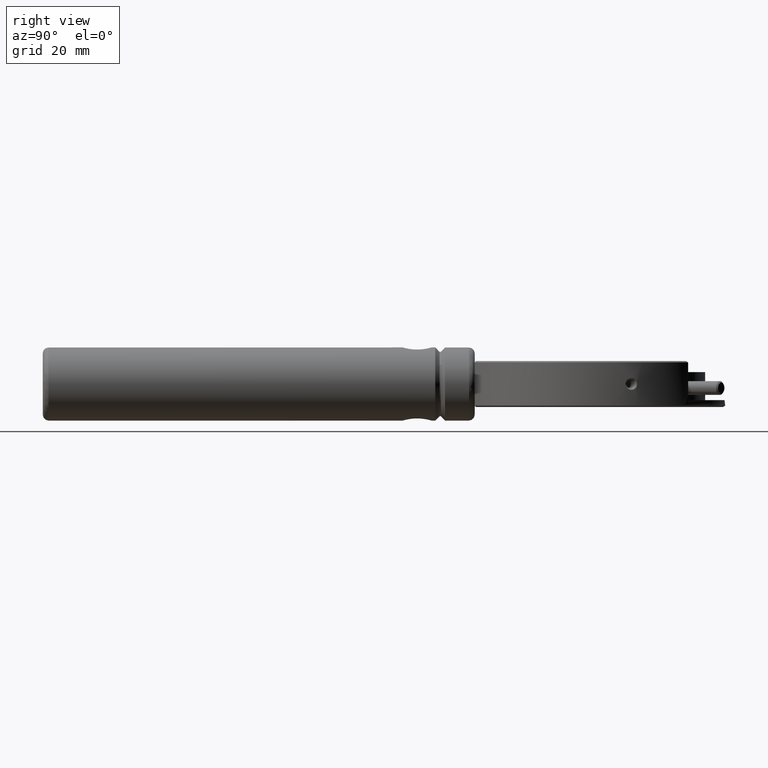
[diagram: clean part render]
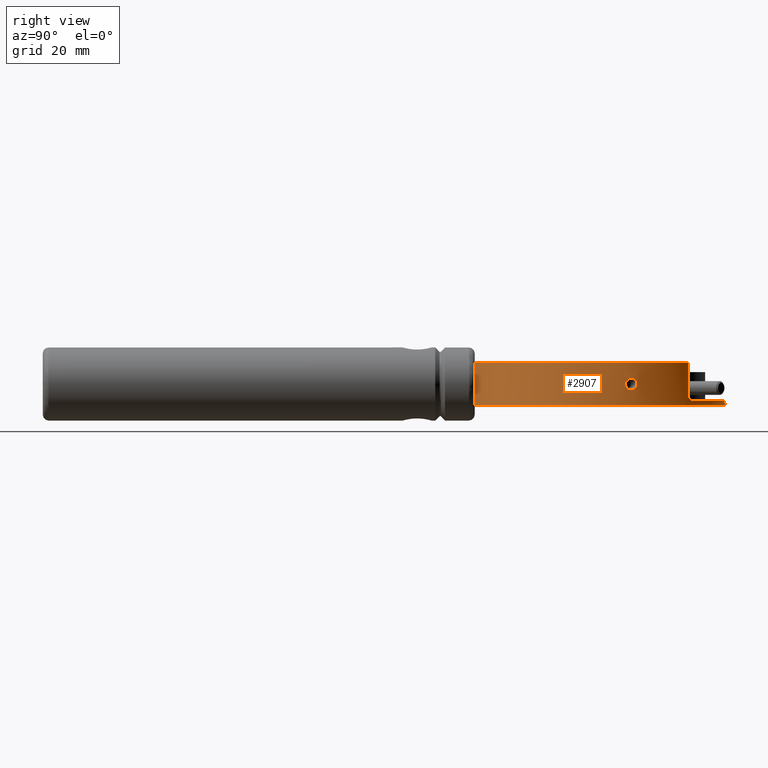
[diagram: same view with one face highlighted and labeled with its STEP entity id]
A machine part, right view. The second image highlights one B-rep face of the part: STEP entity #2907.
In plain terms, the highlighted cylindrical surface (partial cylindrical patch) has radius 22 mm, axis along (0, 0, -1).
Its self-contained STEP definition (entity closure, byte-faithful):
#66 = CARTESIAN_POINT ( 'NONE',  ( 21.53208362161735323, 63.68313322069391091, 0.001097639841570599963 ) ) ;
#89 = EDGE_CURVE ( 'NONE', #1122, #3381, #2987, .T. ) ;
#98 = VERTEX_POINT ( 'NONE', #2210 ) ;
#133 = ORIENTED_EDGE ( 'NONE', *, *, #1977, .T. ) ;
#149 = CARTESIAN_POINT ( 'NONE',  ( 0.03631047345558845174, 59.00000000000000000, -2.799999999999999822 ) ) ;
#177 = CARTESIAN_POINT ( 'NONE',  ( 15.38696860634536101, 74.75950770346759100, -2.649698501230703496 ) ) ;
#180 = CARTESIAN_POINT ( 'NONE',  ( 21.11330063099282484, 65.30634277646340990, 0.8248165072352757754 ) ) ;
#192 = CARTESIAN_POINT ( 'NONE',  ( -20.98404341717015598, 65.49262648632208084, -0.6332521793349706885 ) ) ;
#237 = AXIS2_PLACEMENT_3D ( 'NONE', #1667, #3319, #2476 ) ;
#287 = EDGE_CURVE ( 'NONE', #1444, #1122, #2777, .T. ) ;
#321 = FACE_OUTER_BOUND ( 'NONE', #660, .T. ) ;
#392 = CARTESIAN_POINT ( 'NONE',  ( 21.41614611120218470, 64.18829367799020247, -0.8997166657922373023 ) ) ;
#398 = AXIS2_PLACEMENT_3D ( 'NONE', #685, #1770, #634 ) ;
#401 = VERTEX_POINT ( 'NONE', #968 ) ;
#409 = CARTESIAN_POINT ( 'NONE',  ( 21.00207527948931130, 65.66629416181642398, 0.2699493276304068545 ) ) ;
#421 = CARTESIAN_POINT ( 'NONE',  ( -21.24913446949009810, 64.56309772506304512, 1.028531363236360407 ) ) ;
#426 = VECTOR ( 'NONE', #1808, 1000.000000000000000 ) ;
#445 = CARTESIAN_POINT ( 'NONE',  ( 15.19623645422268332, 74.94317688852787285, -2.780531724459221810 ) ) ;
#446 = CARTESIAN_POINT ( 'NONE',  ( -15.26527587454338786, 74.80761146814876383, -2.718548397324438426 ) ) ;
#457 = CARTESIAN_POINT ( 'NONE',  ( -21.43073924621956650, 63.81337348913274354, -0.5215660498768490694 ) ) ;
#465 = CARTESIAN_POINT ( 'NONE',  ( 21.32176093770550906, 64.56307684895982391, -1.028529513432880016 ) ) ;
#472 = CARTESIAN_POINT ( 'NONE',  ( -20.92114175718690916, 65.69217423565309844, 0.001097639841569707881 ) ) ;
#478 = CARTESIAN_POINT ( 'NONE',  ( -15.52003871264849977, 74.55634918610400064, -2.050000000000000266 ) ) ;
#488 = CARTESIAN_POINT ( 'NONE',  ( -21.04070748740484476, 65.30623414207150290, 0.8246341956433096421 ) ) ;
#493 = CARTESIAN_POINT ( 'NONE',  ( 4.700000000000000178, 37.50000000000000000, 4.000000000000000000 ) ) ;
#510 = CARTESIAN_POINT ( 'NONE',  ( -15.41341465493461627, 74.66240003098162958, -2.511006764129485980 ) ) ;
#538 = CARTESIAN_POINT ( 'NONE',  ( 15.59265965955970046, 74.55634918610400064, 3.750000000000000000 ) ) ;
#540 = VERTEX_POINT ( 'NONE', #949 ) ;
#543 = EDGE_CURVE ( 'NONE', #98, #1444, #1561, .T. ) ;
#559 = VERTEX_POINT ( 'NONE', #2795 ) ;
#577 = ORIENTED_EDGE ( 'NONE', *, *, #2229, .T. ) ;
#584 = DIRECTION ( 'NONE',  ( -1.000000000000000000, 0.000000000000000000, 0.000000000000000000 ) ) ;
#609 = CARTESIAN_POINT ( 'NONE',  ( 0.03631047345558845174, 59.00000000000000000, 3.750000000000000000 ) ) ;
#633 = CARTESIAN_POINT ( 'NONE',  ( 15.59265965955969691, 74.55634918610400064, -2.248104347336847830 ) ) ;
#634 = DIRECTION ( 'NONE',  ( -1.000000000000000000, 0.000000000000000000, 0.000000000000000000 ) ) ;
#644 = EDGE_LOOP ( 'NONE', ( #2788 ) ) ;
#650 = CARTESIAN_POINT ( 'NONE',  ( -15.52003871264849977, 74.55634918610400064, -2.050000000000000266 ) ) ;
#660 = EDGE_LOOP ( 'NONE', ( #3107, #2697, #2293, #133, #3311, #3344, #1948, #1592, #1107, #3055 ) ) ;
#667 = EDGE_CURVE ( 'NONE', #3381, #1464, #1028, .T. ) ;
#668 = CARTESIAN_POINT ( 'NONE',  ( -4.627379053088799488, 37.50000000000000000, 3.750000000000000000 ) ) ;
#685 = CARTESIAN_POINT ( 'NONE',  ( 0.03631047345558845174, 59.00000000000000000, 4.000000000000000000 ) ) ;
#698 = CARTESIAN_POINT ( 'NONE',  ( -21.43093427780146243, 63.81250190061417271, 0.5200985469432252151 ) ) ;
#705 = CARTESIAN_POINT ( 'NONE',  ( 21.48629095761277341, 63.88954112431193266, 0.6357128817186686875 ) ) ;
#716 = CARTESIAN_POINT ( 'NONE',  ( -21.28291614616426486, 64.43197341020079705, 1.002125885649724157 ) ) ;
#726 = CARTESIAN_POINT ( 'NONE',  ( 21.21540417522789923, 64.95496226864123912, -1.002117251799017561 ) ) ;
#736 = CARTESIAN_POINT ( 'NONE',  ( -21.45949493661657925, 63.68298513720604603, 0.1355338402236622997 ) ) ;
#758 = CARTESIAN_POINT ( 'NONE',  ( -14.98066628139066125, 75.07763692662598487, -2.799999999999999822 ) ) ;
#865 = CARTESIAN_POINT ( 'NONE',  ( 15.59265965955970046, 74.55634918610400064, 4.000000000000000000 ) ) ;
#894 = EDGE_CURVE ( 'NONE', #401, #2008, #1669, .T. ) ;
#945 = CARTESIAN_POINT ( 'NONE',  ( -20.96111400423154691, 65.56589190561903990, -0.5200521107425829515 ) ) ;
#949 = CARTESIAN_POINT ( 'NONE',  ( -14.98066628139066125, 75.07763692662598487, -2.799999999999999822 ) ) ;
#952 = CARTESIAN_POINT ( 'NONE',  ( 21.00225281542454070, 65.66573699797133656, -0.2719837683469151779 ) ) ;
#962 = CARTESIAN_POINT ( 'NONE',  ( -21.17926418955194734, 64.82388310632408945, 1.028670580663131995 ) ) ;
#968 = CARTESIAN_POINT ( 'NONE',  ( -4.627379053088809258, 37.50000000000000000, -3.750000000000000000 ) ) ;
#1011 = CARTESIAN_POINT ( 'NONE',  ( 21.53211499987143540, 63.68298919322347729, -0.1355894451334410111 ) ) ;
#1028 = LINE ( 'NONE', #493, #426 ) ;
#1107 = ORIENTED_EDGE ( 'NONE', *, *, #89, .T. ) ;
#1122 = VERTEX_POINT ( 'NONE', #538 ) ;
#1154 = DIRECTION ( 'NONE',  ( 0.000000000000000000, 0.000000000000000000, -1.000000000000000000 ) ) ;
#1199 = CARTESIAN_POINT ( 'NONE',  ( 21.53208362161735323, 63.68313322069389670, 0.001097639841570507372 ) ) ;
#1209 = CARTESIAN_POINT ( 'NONE',  ( -21.17896878405983330, 64.82495935772126927, -1.028529513432730136 ) ) ;
#1210 = VECTOR ( 'NONE', #1881, 1000.000000000000000 ) ;
#1222 = DIRECTION ( 'NONE',  ( 0.000000000000000000, 0.000000000000000000, -1.000000000000000000 ) ) ;
#1250 = B_SPLINE_CURVE_WITH_KNOTS ( 'NONE', 3,
 ( #478, #2938, #2869, #3449, #510, #446, #1527, #758 ),
 .UNSPECIFIED., .F., .F.,
 ( 4, 2, 2, 4 ),
 ( 0.000000000000000000, 0.0002929392057928842884, 0.0005858784115857685769, 0.001171756823171539756 ),
 .UNSPECIFIED. ) ;
#1252 = CARTESIAN_POINT ( 'NONE',  ( 15.53521667580647758, 74.61419415803347022, -2.442304697534432023 ) ) ;
#1273 = CARTESIAN_POINT ( 'NONE',  ( 21.53208362161735323, 63.68313322069389670, 0.001097639841570507372 ) ) ;
#1285 = CARTESIAN_POINT ( 'NONE',  ( -20.96138610448165096, 65.56502298858504219, 0.5215677551542097223 ) ) ;
#1362 = EDGE_CURVE ( 'NONE', #2008, #559, #1429, .T. ) ;
#1418 = LINE ( 'NONE', #1651, #1873 ) ;
#1429 = CIRCLE ( 'NONE', #3420, 22.00000000000000000 ) ;
#1441 = DIRECTION ( 'NONE',  ( -1.000000000000000000, 0.000000000000000000, 0.000000000000000000 ) ) ;
#1444 = VERTEX_POINT ( 'NONE', #1705 ) ;
#1463 = AXIS2_PLACEMENT_3D ( 'NONE', #3015, #2129, #584 ) ;
#1464 = VERTEX_POINT ( 'NONE', #2803 ) ;
#1489 = CARTESIAN_POINT ( 'NONE',  ( 21.14594816733740856, 65.19668905310568618, 0.8997258888142585231 ) ) ;
#1499 = CARTESIAN_POINT ( 'NONE',  ( -21.28280383573066814, 64.43239824766583013, -1.002117251799304443 ) ) ;
#1508 = CARTESIAN_POINT ( 'NONE',  ( 21.52621972764323033, 63.71026418224594323, 0.2719547458720846245 ) ) ;
#1527 = CARTESIAN_POINT ( 'NONE',  ( -15.12544113903116205, 74.94241303260500331, -2.800000000000002043 ) ) ;
#1529 = CARTESIAN_POINT ( 'NONE',  ( 21.32147864066792664, 64.56415661275505613, 1.028670580662923051 ) ) ;
#1539 = CARTESIAN_POINT ( 'NONE',  ( -21.37003892031608743, 64.07715277076948723, -0.8246344097503028880 ) ) ;
#1555 = CARTESIAN_POINT ( 'NONE',  ( -21.14278004317429804, 64.95497349229522399, 1.002122461060440894 ) ) ;
#1561 = B_SPLINE_CURVE_WITH_KNOTS ( 'NONE', 3,
 ( #2032, #2868, #445, #2598, #177, #1252, #633, #1715 ),
 .UNSPECIFIED., .F., .F.,
 ( 4, 2, 2, 4 ),
 ( 0.000000000000000000, 0.0002929396253339820060, 0.0005858792506679640121, 0.001171758501335930626 ),
 .UNSPECIFIED. ) ;
#1569 = CARTESIAN_POINT ( 'NONE',  ( -21.45943039882108394, 63.68328136832663944, -0.1377867972825795873 ) ) ;
#1592 = ORIENTED_EDGE ( 'NONE', *, *, #287, .T. ) ;
#1651 = CARTESIAN_POINT ( 'NONE',  ( -15.52003871264849977, 74.55634918610400064, 4.000000000000000000 ) ) ;
#1667 = CARTESIAN_POINT ( 'NONE',  ( 0.03631047345558845174, 59.00000000000000000, -3.750000000000000000 ) ) ;
#1669 = LINE ( 'NONE', #3228, #1210 ) ;
#1705 = CARTESIAN_POINT ( 'NONE',  ( 15.59265965955970046, 74.55634918610400064, -2.050000000000000266 ) ) ;
#1715 = CARTESIAN_POINT ( 'NONE',  ( 15.59265965955970046, 74.55634918610400064, -2.050000000000000266 ) ) ;
#1734 = CARTESIAN_POINT ( 'NONE',  ( 21.14645762680711627, 65.19493929052066505, -0.9006546157814114828 ) ) ;
#1770 = DIRECTION ( 'NONE',  ( 0.000000000000000000, 0.000000000000000000, -1.000000000000000000 ) ) ;
#1783 = CARTESIAN_POINT ( 'NONE',  ( -20.92118659655699986, 65.69203381507766437, 0.1377847248166785554 ) ) ;
#1801 = CARTESIAN_POINT ( 'NONE',  ( -21.34351656068484004, 64.18832870759695197, 0.8997258888134824772 ) ) ;
#1808 = DIRECTION ( 'NONE',  ( 0.000000000000000000, 0.000000000000000000, -1.000000000000000000 ) ) ;
#1810 = CARTESIAN_POINT ( 'NONE',  ( 21.25188547074383294, 64.82388212688995566, -1.028672418790715470 ) ) ;
#1820 = CARTESIAN_POINT ( 'NONE',  ( -21.07331715656382443, 65.19672369143992796, -0.8997166657920310229 ) ) ;
#1873 = VECTOR ( 'NONE', #2726, 1000.000000000000000 ) ;
#1881 = DIRECTION ( 'NONE',  ( -0.000000000000000000, -0.000000000000000000, 1.000000000000000000 ) ) ;
#1948 = ORIENTED_EDGE ( 'NONE', *, *, #543, .T. ) ;
#1960 = EDGE_CURVE ( 'NONE', #401, #1464, #2493, .T. ) ;
#1977 = EDGE_CURVE ( 'NONE', #559, #2974, #1418, .T. ) ;
#2001 = CARTESIAN_POINT ( 'NONE',  ( 21.35553744595372194, 64.43197243008839337, -1.002119636206147302 ) ) ;
#2008 = VERTEX_POINT ( 'NONE', #668 ) ;
#2028 = CARTESIAN_POINT ( 'NONE',  ( -21.45359670795488327, 63.71027359579604621, -0.2719837683483491975 ) ) ;
#2032 = CARTESIAN_POINT ( 'NONE',  ( 15.05328722830184951, 75.07763692662598487, -2.799999999999999822 ) ) ;
#2040 = CIRCLE ( 'NONE', #3006, 22.00000000000000000 ) ;
#2067 = CARTESIAN_POINT ( 'NONE',  ( -20.92945158380230453, 65.66630276621862095, -0.2699282631203264726 ) ) ;
#2076 = CARTESIAN_POINT ( 'NONE',  ( 21.03400761956405063, 65.56502114034668693, -0.5215660498755571028 ) ) ;
#2088 = VECTOR ( 'NONE', #2528, 1000.000000000000000 ) ;
#2095 = CARTESIAN_POINT ( 'NONE',  ( 21.50355943798735936, 63.81248305007493116, -0.5200521107426738787 ) ) ;
#2129 = DIRECTION ( 'NONE',  ( 0.000000000000000000, 0.000000000000000000, -1.000000000000000000 ) ) ;
#2168 = EDGE_CURVE ( 'NONE', #3314, #3314, #3468, .T. ) ;
#2199 = VERTEX_POINT ( 'NONE', #2731 ) ;
#2210 = CARTESIAN_POINT ( 'NONE',  ( 15.05328722830184951, 75.07763692662598487, -2.799999999999999822 ) ) ;
#2211 = FACE_BOUND ( 'NONE', #3026, .T. ) ;
#2229 = EDGE_CURVE ( 'NONE', #2199, #2199, #2475, .T. ) ;
#2265 = CARTESIAN_POINT ( 'NONE',  ( 21.53205224336326751, 63.68327724816431612, 0.1377847248165820215 ) ) ;
#2293 = ORIENTED_EDGE ( 'NONE', *, *, #1362, .T. ) ;
#2294 = CARTESIAN_POINT ( 'NONE',  ( -21.14266788881822734, 64.95538736913646005, -1.002119636205934583 ) ) ;
#2336 = CARTESIAN_POINT ( 'NONE',  ( 21.05667644480995193, 65.49258713807526533, 0.6333001689542672175 ) ) ;
#2356 = CARTESIAN_POINT ( 'NONE',  ( 21.48678418243758514, 63.88739747087425513, -0.6332521793351379991 ) ) ;
#2365 = CARTESIAN_POINT ( 'NONE',  ( -20.92109691781681491, 65.69231465622851829, -0.1355894451335393769 ) ) ;
#2474 = FACE_BOUND ( 'NONE', #644, .T. ) ;
#2475 = B_SPLINE_CURVE_WITH_KNOTS ( 'NONE', 3,
 ( #3148, #1783, #2592, #1285, #2915, #488, #2574, #1555, #962, #421, #716, #1801, #2899, #3186, #698, #2882, #736, #1569, #2028, #457, #2645, #1539, #2611, #1499, #3401, #1209, #2294, #1820, #3382, #192, #945, #2067, #2365, #472 ),
 .UNSPECIFIED., .T., .F.,
 ( 4, 2, 2, 2, 2, 2, 2, 2, 2, 2, 2, 2, 2, 2, 2, 2, 4 ),
 ( 0.000000000000000000, 0.0004042468403098548805, 0.0008084936806197099779, 0.001212740520929565021, 0.001616987361239420390, 0.002021234201549275324, 0.002425481041859130042, 0.002829727882168984760, 0.003233974722478839912, 0.003638221562788695063, 0.004042468403098549781, 0.004446715243408404933, 0.004850962083718259217, 0.005255208924028114369, 0.005659455764337969520, 0.006063702604647823804, 0.006467949444957679823 ),
 .UNSPECIFIED. ) ;
#2476 = DIRECTION ( 'NONE',  ( 1.000000000000000000, 0.000000000000000000, 3.942553354492743284E-17 ) ) ;
#2493 = CIRCLE ( 'NONE', #237, 22.00000000000000000 ) ;
#2528 = DIRECTION ( 'NONE',  ( -0.000000000000000000, -0.000000000000000000, 1.000000000000000000 ) ) ;
#2565 = CARTESIAN_POINT ( 'NONE',  ( 20.99380882617795763, 65.69202979809709575, -0.1377867972808109465 ) ) ;
#2574 = CARTESIAN_POINT ( 'NONE',  ( -21.07383617311733914, 65.19494091704892469, 0.9006443460328842354 ) ) ;
#2592 = CARTESIAN_POINT ( 'NONE',  ( -20.92962895681609226, 65.66574618673313068, 0.2719547458725042888 ) ) ;
#2598 = CARTESIAN_POINT ( 'NONE',  ( 15.32732459662128832, 74.81749449585404932, -2.705347634042025273 ) ) ;
#2600 = CARTESIAN_POINT ( 'NONE',  ( 21.25159538743347554, 64.82493851783149807, 1.028531363236632190 ) ) ;
#2611 = CARTESIAN_POINT ( 'NONE',  ( -21.34308288423470046, 64.19009877618350401, -0.9006546157818027254 ) ) ;
#2642 = EDGE_CURVE ( 'NONE', #540, #98, #2040, .T. ) ;
#2645 = CARTESIAN_POINT ( 'NONE',  ( -21.41366809571432128, 63.88954946882765995, -0.6357238815016913458 ) ) ;
#2697 = ORIENTED_EDGE ( 'NONE', *, *, #894, .T. ) ;
#2726 = DIRECTION ( 'NONE',  ( 0.000000000000000000, 0.000000000000000000, -1.000000000000000000 ) ) ;
#2731 = CARTESIAN_POINT ( 'NONE',  ( -20.92114175718690205, 65.69217423565309844, 0.001097639841569734119 ) ) ;
#2777 = LINE ( 'NONE', #865, #2088 ) ;
#2788 = ORIENTED_EDGE ( 'NONE', *, *, #2168, .T. ) ;
#2795 = CARTESIAN_POINT ( 'NONE',  ( -15.52003871264849977, 74.55634918610400064, 3.750000000000000000 ) ) ;
#2803 = CARTESIAN_POINT ( 'NONE',  ( 4.700000000000000178, 37.50000000000000000, -3.750000000000000000 ) ) ;
#2815 = CARTESIAN_POINT ( 'NONE',  ( 21.35542763605499061, 64.43238693512343218, 1.002122461060043435 ) ) ;
#2832 = CARTESIAN_POINT ( 'NONE',  ( 21.41570420552724840, 64.19009711417770347, 0.9006443460325945782 ) ) ;
#2868 = CARTESIAN_POINT ( 'NONE',  ( 15.12567432486629926, 75.01002528995202567, -2.799999999999997602 ) ) ;
#2869 = CARTESIAN_POINT ( 'NONE',  ( -15.50627416747644638, 74.57014699313749873, -2.246246583853880985 ) ) ;
#2871 = CARTESIAN_POINT ( 'NONE',  ( 21.44266053461746679, 64.07715001118299369, 0.8246341956427905018 ) ) ;
#2882 = CARTESIAN_POINT ( 'NONE',  ( -21.45372153924755665, 63.70970230978377202, 0.2699493276284306575 ) ) ;
#2892 = CARTESIAN_POINT ( 'NONE',  ( 21.05731155940210542, 65.49051523152027698, -0.6357238815005330501 ) ) ;
#2899 = CARTESIAN_POINT ( 'NONE',  ( -21.37006982651823606, 64.07704202937749471, 0.8248165072341476778 ) ) ;
#2907 = ADVANCED_FACE ( 'NONE', ( #321, #2474, #2211 ), #3302, .T. ) ;
#2915 = CARTESIAN_POINT ( 'NONE',  ( -20.98468809866104223, 65.49052341557542434, 0.6357128817190612624 ) ) ;
#2938 = CARTESIAN_POINT ( 'NONE',  ( -15.52003871264849799, 74.55634918610402906, -2.149052275232229636 ) ) ;
#2974 = VERTEX_POINT ( 'NONE', #650 ) ;
#2987 = CIRCLE ( 'NONE', #1463, 22.00000000000000000 ) ;
#3006 = AXIS2_PLACEMENT_3D ( 'NONE', #149, #1222, #3396 ) ;
#3015 = CARTESIAN_POINT ( 'NONE',  ( 0.03631047345558845174, 59.00000000000000000, 3.750000000000000000 ) ) ;
#3026 = EDGE_LOOP ( 'NONE', ( #577 ) ) ;
#3055 = ORIENTED_EDGE ( 'NONE', *, *, #667, .T. ) ;
#3107 = ORIENTED_EDGE ( 'NONE', *, *, #1960, .F. ) ;
#3137 = CARTESIAN_POINT ( 'NONE',  ( 21.50336062519945912, 63.81337160442463130, 0.5215677551540004453 ) ) ;
#3148 = CARTESIAN_POINT ( 'NONE',  ( -20.92114175718690916, 65.69217423565309844, 0.001097639841569707881 ) ) ;
#3160 = CARTESIAN_POINT ( 'NONE',  ( 21.11332923613192847, 65.30623141850594493, -0.8246344097496920433 ) ) ;
#3178 = CARTESIAN_POINT ( 'NONE',  ( 21.52634440785013936, 63.70969348376516450, -0.2699282631204794614 ) ) ;
#3186 = CARTESIAN_POINT ( 'NONE',  ( -21.41415402362115827, 63.88743758781861715, 0.6333001689525590283 ) ) ;
#3228 = CARTESIAN_POINT ( 'NONE',  ( -4.627379053088799488, 37.50000000000000000, 4.000000000000000000 ) ) ;
#3302 = CYLINDRICAL_SURFACE ( 'NONE', #398, 22.00000000000000000 ) ;
#3311 = ORIENTED_EDGE ( 'NONE', *, *, #3366, .T. ) ;
#3314 = VERTEX_POINT ( 'NONE', #66 ) ;
#3319 = DIRECTION ( 'NONE',  ( -0.000000000000000000, -0.000000000000000000, -1.000000000000000000 ) ) ;
#3344 = ORIENTED_EDGE ( 'NONE', *, *, #2642, .T. ) ;
#3354 = CARTESIAN_POINT ( 'NONE',  ( 21.21528902018459561, 64.95538634389315291, 1.002125885650178239 ) ) ;
#3366 = EDGE_CURVE ( 'NONE', #2974, #540, #1250, .T. ) ;
#3381 = VERTEX_POINT ( 'NONE', #3428 ) ;
#3382 = CARTESIAN_POINT ( 'NONE',  ( -21.04067697162900075, 65.30635208482550524, -0.8248144829861038252 ) ) ;
#3391 = CARTESIAN_POINT ( 'NONE',  ( 21.03374072760989222, 65.56587347393443110, 0.5200985469450615239 ) ) ;
#3396 = DIRECTION ( 'NONE',  ( -1.000000000000000000, 0.000000000000000000, 0.000000000000000000 ) ) ;
#3401 = CARTESIAN_POINT ( 'NONE',  ( -21.24885749353476427, 64.56415762811208481, -1.028672418790854248 ) ) ;
#3420 = AXIS2_PLACEMENT_3D ( 'NONE', #609, #1154, #1441 ) ;
#3428 = CARTESIAN_POINT ( 'NONE',  ( 4.700000000000000178, 37.50000000000000000, 3.750000000000000000 ) ) ;
#3430 = CARTESIAN_POINT ( 'NONE',  ( 20.99371660198806566, 65.69231861067072487, 0.1355338402255887031 ) ) ;
#3449 = CARTESIAN_POINT ( 'NONE',  ( -15.45294402024753566, 74.62320101444458942, -2.427834856211736003 ) ) ;
#3451 = CARTESIAN_POINT ( 'NONE',  ( 21.44269307855717699, 64.07703261187481303, -0.8248144829863032212 ) ) ;
#3468 = B_SPLINE_CURVE_WITH_KNOTS ( 'NONE', 3,
 ( #1199, #2265, #1508, #3137, #705, #2871, #2832, #2815, #1529, #2600, #3354, #1489, #180, #2336, #3391, #409, #3430, #2565, #952, #2076, #2892, #3160, #1734, #726, #1810, #465, #2001, #392, #3451, #2356, #2095, #3178, #1011, #1273 ),
 .UNSPECIFIED., .T., .F.,
 ( 4, 2, 2, 2, 2, 2, 2, 2, 2, 2, 2, 2, 2, 2, 2, 2, 4 ),
 ( 0.000000000000000000, 0.0004042468403094673325, 0.0008084936806189346650, 0.001212740520928401889, 0.001616987361237869330, 0.002021234201547336771, 0.002425481041856803778, 0.002829727882166271219, 0.003233974722475738660, 0.003638221562785206101, 0.004042468403094673542, 0.004446715243404140983, 0.004850962083713607556, 0.005255208924023074997, 0.005659455764332542438, 0.006063702604642009879, 0.006467949444951477320 ),
 .UNSPECIFIED. ) ;